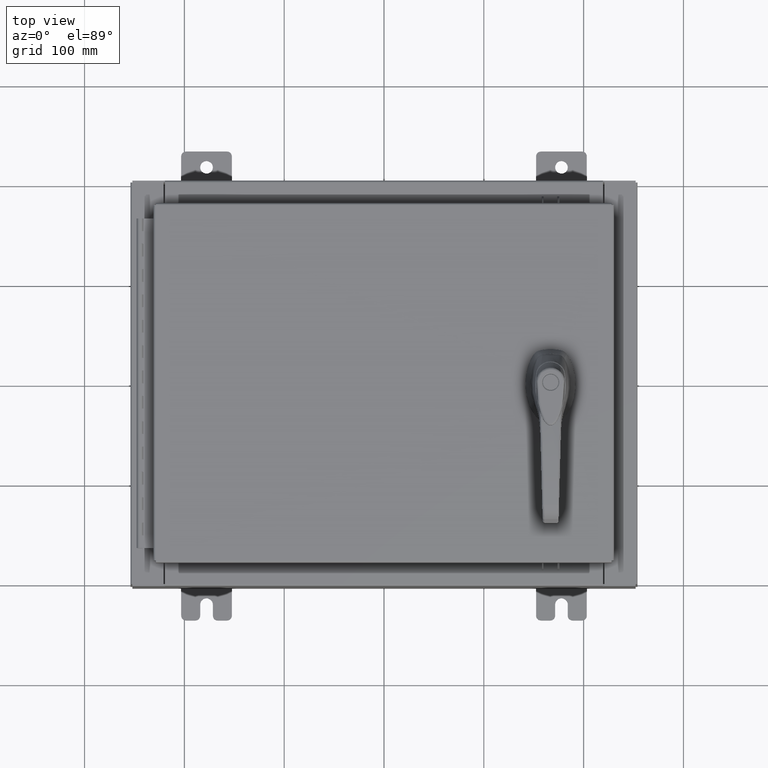
[diagram: clean part render]
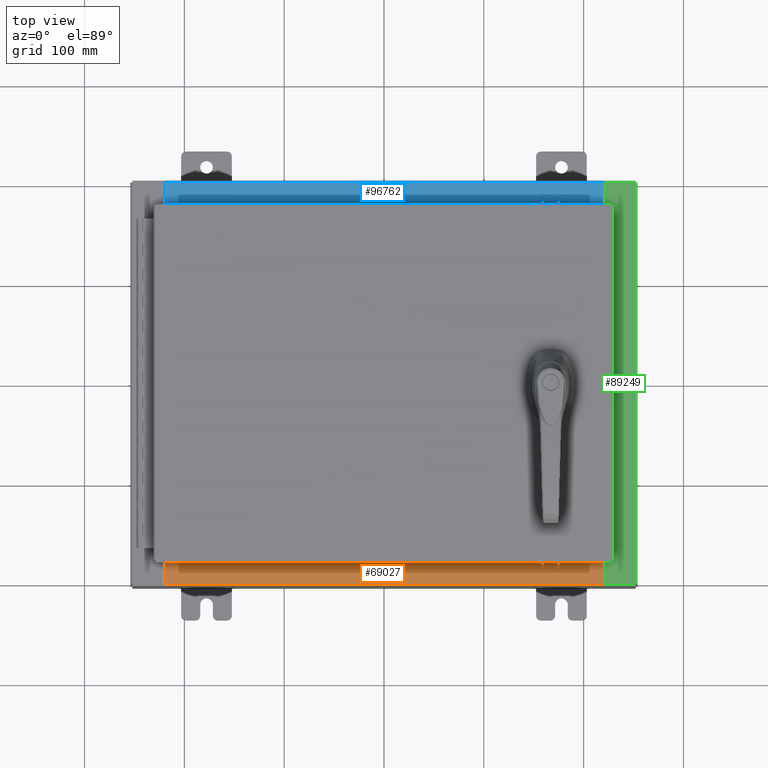
[diagram: same view with three faces highlighted in distinct colors, each labeled with its STEP entity id]
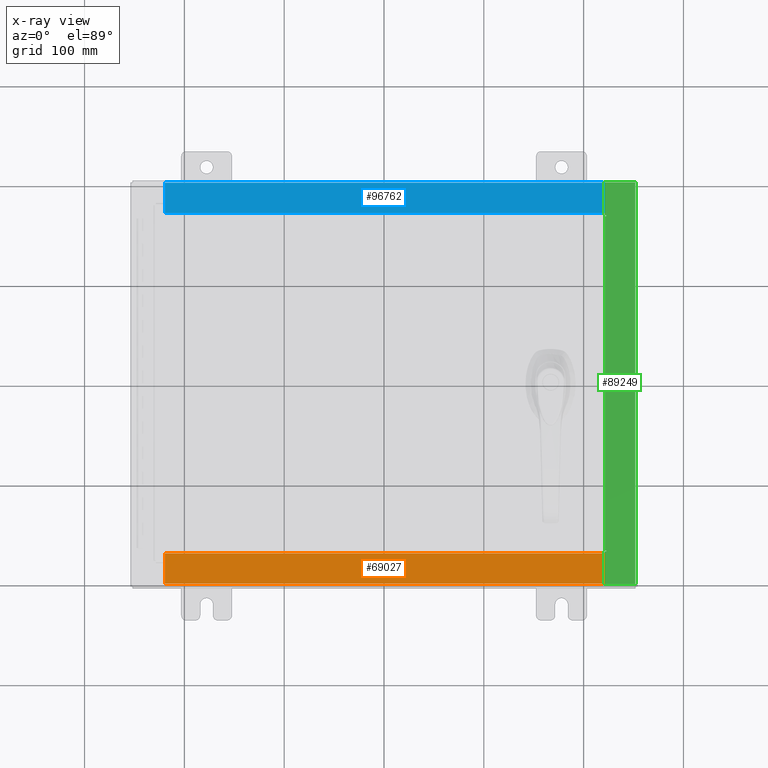
[diagram: x-ray of the same camera — body ghosted, the three highlighted faces saturated]
A machine part, top view with three faces highlighted in distinct colors.
The next image is the same camera in x-ray (body ghosted, the three faces saturated) — at least one of them is partly hidden behind the body in this view.
Their STEP definitions:

[orange] entity #69027 — the highlighted planar face has unit normal (-0, -0, 1).
#2623 = ORIENTED_EDGE ( 'NONE', *, *, #13359, .F. ) ;
#3236 = VERTEX_POINT ( 'NONE', #22365 ) ;
#5287 = FACE_OUTER_BOUND ( 'NONE', #79147, .T. ) ;
#5304 = CARTESIAN_POINT ( 'NONE',  ( 0.0000000000000000000, 1.069354855923099900E-014, 3.000000000000000900 ) ) ;
#10774 = ORIENTED_EDGE ( 'NONE', *, *, #101540, .T. ) ;
#13359 = EDGE_CURVE ( 'NONE', #88238, #41405, #96773, .T. ) ;
#13560 = DIRECTION ( 'NONE',  ( 0.0000000000000000000, -1.000000000000000000, 3.566381192773190000E-015 ) ) ;
#22365 = CARTESIAN_POINT ( 'NONE',  ( 8.637200000000000000, -0.08769999999999965300, 3.000000000000000900 ) ) ;
#28298 = CARTESIAN_POINT ( 'NONE',  ( -8.637200000000000000, -0.07469999999999973900, 3.000000000000000900 ) ) ;
#33025 = DIRECTION ( 'NONE',  ( -1.000000000000000000, 0.0000000000000000000, 0.0000000000000000000 ) ) ;
#40529 = CARTESIAN_POINT ( 'NONE',  ( -8.637200000000000000, -0.08770000000000000000, 3.000000000000000900 ) ) ;
#41405 = VERTEX_POINT ( 'NONE', #40529 ) ;
#41979 = ORIENTED_EDGE ( 'NONE', *, *, #56840, .F. ) ;
#44645 = VECTOR ( 'NONE', #51138, 39.37007874015748100 ) ;
#46339 = PLANE ( 'NONE',  #75228 ) ;
#49548 = CARTESIAN_POINT ( 'NONE',  ( 8.637200000000000000, -1.287299999999999900, 3.000000000000005300 ) ) ;
#51138 = DIRECTION ( 'NONE',  ( -0.0000000000000000000, -1.000000000000000000, 3.566381192773190000E-015 ) ) ;
#52103 = CARTESIAN_POINT ( 'NONE',  ( 8.637200000000000000, -1.287299999999999900, 3.000000000000005300 ) ) ;
#56840 = EDGE_CURVE ( 'NONE', #3236, #57821, #66570, .T. ) ;
#57821 = VERTEX_POINT ( 'NONE', #52103 ) ;
#62858 = DIRECTION ( 'NONE',  ( 0.0000000000000000000, 3.566381192773190000E-015, 1.000000000000000000 ) ) ;
#65013 = CARTESIAN_POINT ( 'NONE',  ( -8.637200000000000000, -1.287299999999999200, 3.000000000000005300 ) ) ;
#66570 = LINE ( 'NONE', #75828, #44645 ) ;
#69027 = ADVANCED_FACE ( 'NONE', ( #5287 ), #46339, .T. ) ;
#70394 = ORIENTED_EDGE ( 'NONE', *, *, #90447, .F. ) ;
#72799 = LINE ( 'NONE', #49548, #75382 ) ;
#74467 = VECTOR ( 'NONE', #93222, 39.37007874015748100 ) ;
#75228 = AXIS2_PLACEMENT_3D ( 'NONE', #5304, #62858, #13560 ) ;
#75382 = VECTOR ( 'NONE', #33025, 39.37007874015748100 ) ;
#75828 = CARTESIAN_POINT ( 'NONE',  ( 8.637200000000000000, -1.300299999999999800, 3.000000000000005300 ) ) ;
#77997 = DIRECTION ( 'NONE',  ( -1.000000000000000000, 3.162886113166609200E-017, -1.128005754888089100E-031 ) ) ;
#79147 = EDGE_LOOP ( 'NONE', ( #2623, #70394, #41979, #10774 ) ) ;
#82309 = LINE ( 'NONE', #94868, #84957 ) ;
#84957 = VECTOR ( 'NONE', #77997, 39.37007874015748100 ) ;
#88238 = VERTEX_POINT ( 'NONE', #65013 ) ;
#90447 = EDGE_CURVE ( 'NONE', #57821, #88238, #72799, .T. ) ;
#93222 = DIRECTION ( 'NONE',  ( -0.0000000000000000000, 1.000000000000000000, -3.566381192773190000E-015 ) ) ;
#94868 = CARTESIAN_POINT ( 'NONE',  ( -2.773851121247453900E-018, -0.08770000000000000000, 3.000000000000001300 ) ) ;
#96773 = LINE ( 'NONE', #28298, #74467 ) ;
#101540 = EDGE_CURVE ( 'NONE', #3236, #41405, #82309, .T. ) ;

[blue] entity #96762 — the highlighted planar face has unit normal (0, 0, 1).
#3540 = LINE ( 'NONE', #104342, #27987 ) ;
#4997 = LINE ( 'NONE', #71763, #87897 ) ;
#5389 = DIRECTION ( 'NONE',  ( -1.000000000000000000, 3.162886113166609200E-017, -1.128005754888089100E-031 ) ) ;
#7183 = DIRECTION ( 'NONE',  ( 0.0000000000000000000, -1.000000000000000000, 3.566381192773190000E-015 ) ) ;
#12686 = VERTEX_POINT ( 'NONE', #90171 ) ;
#15082 = PLANE ( 'NONE',  #53970 ) ;
#16208 = CARTESIAN_POINT ( 'NONE',  ( -8.637200000000000000, -0.07469999999999973900, 3.000000000000000900 ) ) ;
#19075 = ORIENTED_EDGE ( 'NONE', *, *, #96647, .T. ) ;
#20760 = CARTESIAN_POINT ( 'NONE',  ( 8.637200000000000000, -1.300299999999999800, 3.000000000000005300 ) ) ;
#22703 = ORIENTED_EDGE ( 'NONE', *, *, #40281, .F. ) ;
#27987 = VECTOR ( 'NONE', #71124, 39.37007874015748100 ) ;
#32457 = CARTESIAN_POINT ( 'NONE',  ( 8.637200000000000000, -1.287299999999999900, 3.000000000000005300 ) ) ;
#32786 = VECTOR ( 'NONE', #45614, 39.37007874015748100 ) ;
#32823 = DIRECTION ( 'NONE',  ( -0.0000000000000000000, 1.000000000000000000, -3.566381192773190000E-015 ) ) ;
#37040 = ORIENTED_EDGE ( 'NONE', *, *, #89691, .F. ) ;
#37505 = CARTESIAN_POINT ( 'NONE',  ( 8.637200000000000000, -0.08769999999999965300, 3.000000000000000900 ) ) ;
#39954 = CARTESIAN_POINT ( 'NONE',  ( 0.0000000000000000000, 1.069354855923099900E-014, 3.000000000000000900 ) ) ;
#40281 = EDGE_CURVE ( 'NONE', #40626, #94884, #3540, .T. ) ;
#40626 = VERTEX_POINT ( 'NONE', #32457 ) ;
#43150 = VERTEX_POINT ( 'NONE', #37505 ) ;
#45614 = DIRECTION ( 'NONE',  ( -0.0000000000000000000, -1.000000000000000000, 3.566381192773190000E-015 ) ) ;
#53970 = AXIS2_PLACEMENT_3D ( 'NONE', #39954, #56460, #7183 ) ;
#56460 = DIRECTION ( 'NONE',  ( 0.0000000000000000000, 3.566381192773190000E-015, 1.000000000000000000 ) ) ;
#57201 = LINE ( 'NONE', #20760, #32786 ) ;
#62607 = LINE ( 'NONE', #16208, #82310 ) ;
#63659 = EDGE_LOOP ( 'NONE', ( #90783, #22703, #37040, #19075 ) ) ;
#65532 = FACE_OUTER_BOUND ( 'NONE', #63659, .T. ) ;
#71124 = DIRECTION ( 'NONE',  ( -1.000000000000000000, 0.0000000000000000000, 0.0000000000000000000 ) ) ;
#71763 = CARTESIAN_POINT ( 'NONE',  ( -2.773851121247453900E-018, -0.08770000000000000000, 3.000000000000001300 ) ) ;
#80706 = EDGE_CURVE ( 'NONE', #94884, #12686, #62607, .T. ) ;
#82310 = VECTOR ( 'NONE', #32823, 39.37007874015748100 ) ;
#87897 = VECTOR ( 'NONE', #5389, 39.37007874015748100 ) ;
#89691 = EDGE_CURVE ( 'NONE', #43150, #40626, #57201, .T. ) ;
#90171 = CARTESIAN_POINT ( 'NONE',  ( -8.637200000000000000, -0.08770000000000000000, 3.000000000000000900 ) ) ;
#90783 = ORIENTED_EDGE ( 'NONE', *, *, #80706, .F. ) ;
#94884 = VERTEX_POINT ( 'NONE', #101246 ) ;
#96647 = EDGE_CURVE ( 'NONE', #43150, #12686, #4997, .T. ) ;
#96762 = ADVANCED_FACE ( 'NONE', ( #65532 ), #15082, .T. ) ;
#101246 = CARTESIAN_POINT ( 'NONE',  ( -8.637200000000000000, -1.287299999999999200, 3.000000000000005300 ) ) ;
#104342 = CARTESIAN_POINT ( 'NONE',  ( 8.637200000000000000, -1.287299999999999900, 3.000000000000005300 ) ) ;

[green] entity #89249 — the highlighted planar face has unit normal (-0, 0, -1).
#673 = VERTEX_POINT ( 'NONE', #61124 ) ;
#1361 = DIRECTION ( 'NONE',  ( 1.000000000000000000, 2.170286390199955400E-014, 2.170286390199955400E-014 ) ) ;
#1371 = DIRECTION ( 'NONE',  ( -0.0000000000000000000, -1.000000000000000000, -0.0000000000000000000 ) ) ;
#1997 = EDGE_LOOP ( 'NONE', ( #97262, #46307, #74021, #34461, #68832, #99417, #20879, #103779, #106702, #21940, #47079, #54266 ) ) ;
#2207 = CARTESIAN_POINT ( 'NONE',  ( 8.750050000000021200, -6.631100000000000000, 5.925300000000009800 ) ) ;
#3220 = CARTESIAN_POINT ( 'NONE',  ( 8.750050000000021200, -6.593750000000000900, 5.925300000000009800 ) ) ;
#5776 = DIRECTION ( 'NONE',  ( 0.0000000000000000000, -1.000000000000000000, 0.0000000000000000000 ) ) ;
#6966 = CIRCLE ( 'NONE', #35718, 0.01867500000000058700 ) ;
#8370 = EDGE_CURVE ( 'NONE', #49419, #55257, #59335, .T. ) ;
#9494 = VERTEX_POINT ( 'NONE', #17725 ) ;
#9513 = EDGE_CURVE ( 'NONE', #67893, #9494, #46412, .T. ) ;
#11973 = CARTESIAN_POINT ( 'NONE',  ( 8.699700000000019500, 6.631099999999999100, 5.925300000000009800 ) ) ;
#15225 = VECTOR ( 'NONE', #97283, 39.37007874015748100 ) ;
#16885 = VECTOR ( 'NONE', #79943, 39.37007874015748100 ) ;
#17333 = FACE_OUTER_BOUND ( 'NONE', #1997, .T. ) ;
#17725 = CARTESIAN_POINT ( 'NONE',  ( 8.712700000000021200, 6.593750000000000000, 5.925300000000011600 ) ) ;
#17835 = EDGE_CURVE ( 'NONE', #25886, #22535, #50649, .T. ) ;
#18125 = CARTESIAN_POINT ( 'NONE',  ( 8.750050000000021200, -6.593750000000000900, 5.925300000000011600 ) ) ;
#20879 = ORIENTED_EDGE ( 'NONE', *, *, #85545, .F. ) ;
#21550 = CARTESIAN_POINT ( 'NONE',  ( 8.750050000000021200, 6.631100000000000000, 5.925300000000009800 ) ) ;
#21940 = ORIENTED_EDGE ( 'NONE', *, *, #9513, .F. ) ;
#22530 = CARTESIAN_POINT ( 'NONE',  ( 8.712700000000021200, -6.593750000000000900, 5.925300000000011600 ) ) ;
#22535 = VERTEX_POINT ( 'NONE', #94026 ) ;
#24554 = VECTOR ( 'NONE', #1361, 39.37007874015748100 ) ;
#24602 = DIRECTION ( 'NONE',  ( 7.132762385546378400E-015, 0.0000000000000000000, 1.000000000000000000 ) ) ;
#24709 = CARTESIAN_POINT ( 'NONE',  ( 4.959073083586140300E-014, -7.925300000000008900, 5.925300000000072800 ) ) ;
#25886 = VERTEX_POINT ( 'NONE', #53642 ) ;
#27139 = LINE ( 'NONE', #100588, #24554 ) ;
#28711 = VECTOR ( 'NONE', #49569, 39.37007874015748100 ) ;
#29007 = CARTESIAN_POINT ( 'NONE',  ( 8.699700000000019500, -6.631100000000002700, 5.925300000000009800 ) ) ;
#30265 = CARTESIAN_POINT ( 'NONE',  ( 8.712700000000021200, -6.593750000000002700, 5.925300000000011600 ) ) ;
#30949 = CARTESIAN_POINT ( 'NONE',  ( 8.750050000000021200, 6.612425000000000000, 5.925300000000011600 ) ) ;
#31599 = EDGE_CURVE ( 'NONE', #35402, #49419, #27139, .T. ) ;
#33686 = LINE ( 'NONE', #71532, #16885 ) ;
#34461 = ORIENTED_EDGE ( 'NONE', *, *, #55564, .F. ) ;
#34491 = LINE ( 'NONE', #18125, #95550 ) ;
#35402 = VERTEX_POINT ( 'NONE', #29007 ) ;
#35718 = AXIS2_PLACEMENT_3D ( 'NONE', #30949, #89083, #39290 ) ;
#35719 = LINE ( 'NONE', #88934, #15225 ) ;
#35813 = LINE ( 'NONE', #55069, #82481 ) ;
#37811 = DIRECTION ( 'NONE',  ( -1.000000000000000000, 0.0000000000000000000, 7.132762385546378400E-015 ) ) ;
#39290 = DIRECTION ( 'NONE',  ( 1.000000000000000000, 0.0000000000000000000, 0.0000000000000000000 ) ) ;
#43815 = VECTOR ( 'NONE', #74684, 39.37007874015748100 ) ;
#45697 = CARTESIAN_POINT ( 'NONE',  ( 4.252457061909005100E-014, 0.0000000000000000000, 5.925300000000072800 ) ) ;
#46307 = ORIENTED_EDGE ( 'NONE', *, *, #49069, .T. ) ;
#46412 = LINE ( 'NONE', #30265, #43815 ) ;
#47079 = ORIENTED_EDGE ( 'NONE', *, *, #100130, .F. ) ;
#49069 = EDGE_CURVE ( 'NONE', #35402, #25886, #33686, .T. ) ;
#49419 = VERTEX_POINT ( 'NONE', #2207 ) ;
#49569 = DIRECTION ( 'NONE',  ( 1.000000000000000000, 8.915952981932975000E-016, -7.132762385546378400E-015 ) ) ;
#50649 = LINE ( 'NONE', #24709, #28711 ) ;
#53642 = CARTESIAN_POINT ( 'NONE',  ( 8.699700000000019500, -7.925300000000000900, 5.925300000000009800 ) ) ;
#54266 = ORIENTED_EDGE ( 'NONE', *, *, #8370, .F. ) ;
#55069 = CARTESIAN_POINT ( 'NONE',  ( 8.699700000000019500, 0.0000000000000000000, 5.925300000000009800 ) ) ;
#55257 = VERTEX_POINT ( 'NONE', #3220 ) ;
#55564 = EDGE_CURVE ( 'NONE', #78144, #22535, #99460, .T. ) ;
#55880 = EDGE_CURVE ( 'NONE', #9494, #67346, #105854, .T. ) ;
#57591 = VECTOR ( 'NONE', #1371, 39.37007874015748100 ) ;
#59335 = CIRCLE ( 'NONE', #75664, 0.01867500000000058700 ) ;
#61124 = CARTESIAN_POINT ( 'NONE',  ( 8.699700000000019500, 7.925300000000000000, 5.925300000000009800 ) ) ;
#61149 = AXIS2_PLACEMENT_3D ( 'NONE', #45697, #87558, #37811 ) ;
#64952 = DIRECTION ( 'NONE',  ( -1.000000000000000000, 0.0000000000000000000, -2.170286390199955400E-014 ) ) ;
#67346 = VERTEX_POINT ( 'NONE', #83069 ) ;
#67530 = DIRECTION ( 'NONE',  ( -1.000000000000000000, 0.0000000000000000000, 0.0000000000000000000 ) ) ;
#67893 = VERTEX_POINT ( 'NONE', #22530 ) ;
#68832 = ORIENTED_EDGE ( 'NONE', *, *, #98973, .T. ) ;
#70646 = PLANE ( 'NONE',  #61149 ) ;
#71532 = CARTESIAN_POINT ( 'NONE',  ( 8.699700000000019500, 0.0000000000000000000, 5.925300000000009800 ) ) ;
#72832 = EDGE_CURVE ( 'NONE', #673, #85883, #35813, .T. ) ;
#74021 = ORIENTED_EDGE ( 'NONE', *, *, #17835, .T. ) ;
#74684 = DIRECTION ( 'NONE',  ( -0.0000000000000000000, 1.000000000000000000, -0.0000000000000000000 ) ) ;
#74839 = VERTEX_POINT ( 'NONE', #21550 ) ;
#75664 = AXIS2_PLACEMENT_3D ( 'NONE', #104316, #24602, #92235 ) ;
#76759 = LINE ( 'NONE', #106551, #96400 ) ;
#78144 = VERTEX_POINT ( 'NONE', #107289 ) ;
#79943 = DIRECTION ( 'NONE',  ( 0.0000000000000000000, -1.000000000000000000, 0.0000000000000000000 ) ) ;
#82211 = CARTESIAN_POINT ( 'NONE',  ( 8.712700000000021200, 6.593750000000000000, 5.925300000000011600 ) ) ;
#82481 = VECTOR ( 'NONE', #5776, 39.37007874015748100 ) ;
#83069 = CARTESIAN_POINT ( 'NONE',  ( 8.750050000000021200, 6.593749999999999100, 5.925300000000009800 ) ) ;
#83731 = VECTOR ( 'NONE', #90685, 39.37007874015748100 ) ;
#83810 = CARTESIAN_POINT ( 'NONE',  ( 9.912300000000019700, -7.925300000000000000, 5.925300000000001800 ) ) ;
#85545 = EDGE_CURVE ( 'NONE', #74839, #85883, #76759, .T. ) ;
#85883 = VERTEX_POINT ( 'NONE', #11973 ) ;
#87558 = DIRECTION ( 'NONE',  ( -7.132762385546378400E-015, 0.0000000000000000000, -1.000000000000000000 ) ) ;
#88934 = CARTESIAN_POINT ( 'NONE',  ( 4.252457061909005100E-014, 7.925300000000000000, 5.925300000000072800 ) ) ;
#89083 = DIRECTION ( 'NONE',  ( 7.132762385546378400E-015, 0.0000000000000000000, 1.000000000000000000 ) ) ;
#89249 = ADVANCED_FACE ( 'NONE', ( #17333 ), #70646, .F. ) ;
#90685 = DIRECTION ( 'NONE',  ( 1.000000000000000000, 0.0000000000000000000, 0.0000000000000000000 ) ) ;
#92235 = DIRECTION ( 'NONE',  ( 1.000000000000000000, 0.0000000000000000000, 0.0000000000000000000 ) ) ;
#94026 = CARTESIAN_POINT ( 'NONE',  ( 9.912300000000019700, -7.925300000000000000, 5.925300000000001800 ) ) ;
#95550 = VECTOR ( 'NONE', #67530, 39.37007874015748100 ) ;
#96400 = VECTOR ( 'NONE', #64952, 39.37007874015748100 ) ;
#97262 = ORIENTED_EDGE ( 'NONE', *, *, #31599, .F. ) ;
#97283 = DIRECTION ( 'NONE',  ( -1.000000000000000000, 0.0000000000000000000, 7.132762385546378400E-015 ) ) ;
#98973 = EDGE_CURVE ( 'NONE', #78144, #673, #35719, .T. ) ;
#99417 = ORIENTED_EDGE ( 'NONE', *, *, #72832, .T. ) ;
#99460 = LINE ( 'NONE', #83810, #57591 ) ;
#100130 = EDGE_CURVE ( 'NONE', #55257, #67893, #34491, .T. ) ;
#100588 = CARTESIAN_POINT ( 'NONE',  ( 8.699700000000019500, -6.631100000000002700, 5.925300000000009800 ) ) ;
#103779 = ORIENTED_EDGE ( 'NONE', *, *, #105891, .F. ) ;
#104316 = CARTESIAN_POINT ( 'NONE',  ( 8.750050000000021200, -6.612425000000000900, 5.925300000000011600 ) ) ;
#105854 = LINE ( 'NONE', #82211, #83731 ) ;
#105891 = EDGE_CURVE ( 'NONE', #67346, #74839, #6966, .T. ) ;
#106551 = CARTESIAN_POINT ( 'NONE',  ( 8.750050000000021200, 6.631100000000000000, 5.925300000000011600 ) ) ;
#106702 = ORIENTED_EDGE ( 'NONE', *, *, #55880, .F. ) ;
#107289 = CARTESIAN_POINT ( 'NONE',  ( 9.912300000000019700, 7.925300000000000000, 5.925300000000001800 ) ) ;